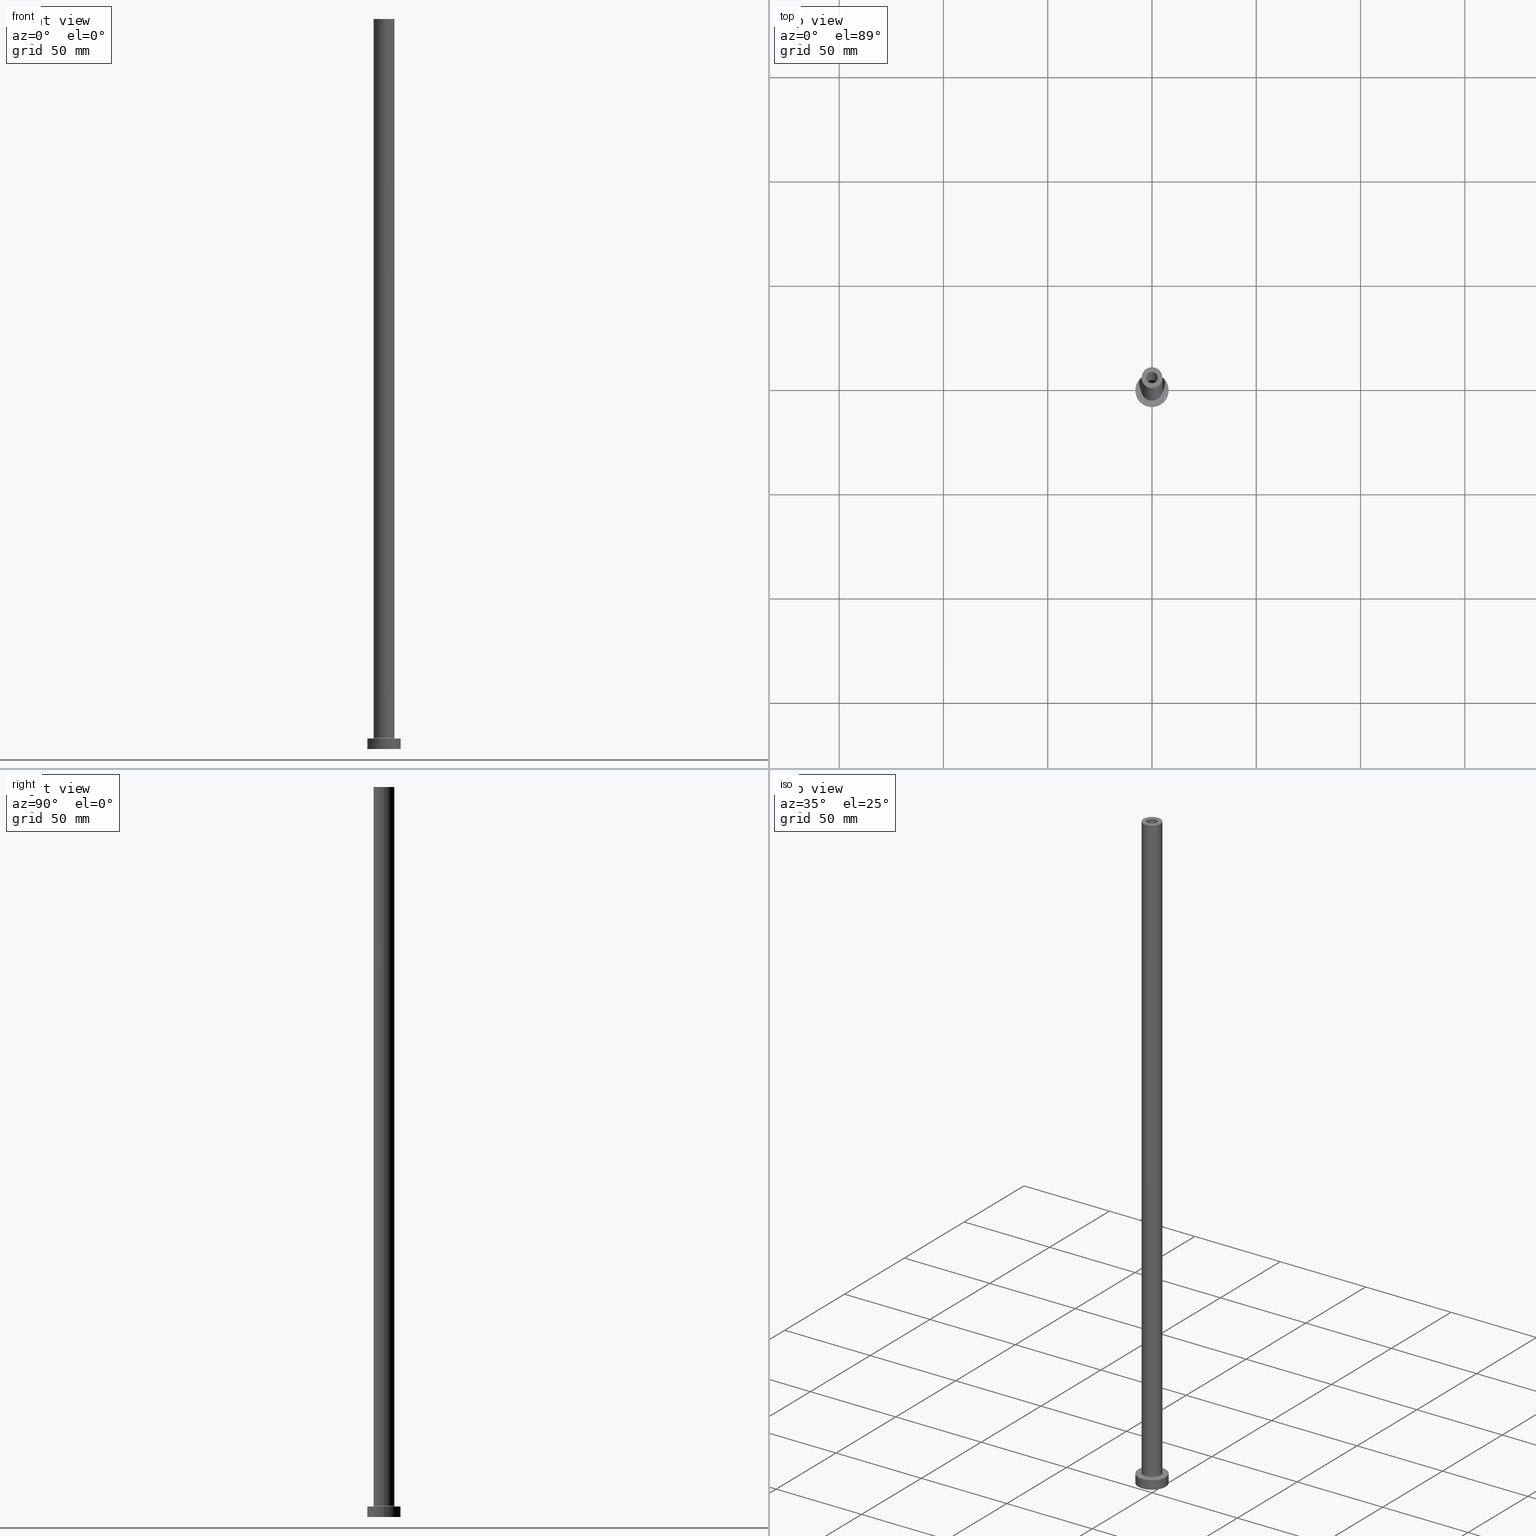
[diagram: canonical four-view strip — front | top / right | iso, engineering-drawing reading convention]
A machine part, canonical four-view strip (front | top / right | iso — engineering-drawing reading convention). The complete STEP part file that produces these views, byte-faithful:
ISO-10303-21;
HEADER;
FILE_DESCRIPTION (( 'STEP AP203' ),
    '1' );
FILE_NAME ('17ef.STEP',
    '2023-02-13T16:13:09',
    ( '' ),
    ( '' ),
    'SwSTEP 2.0',
    'SolidWorks 2019',
    '' );
FILE_SCHEMA (( 'CONFIG_CONTROL_DESIGN' ));
ENDSEC;

DATA;
#1 = CARTESIAN_POINT ( 'NONE',  ( -8.000000000000000000, 0.000000000000000000, 0.000000000000000000 ) ) ;
#2 = CIRCLE ( 'NONE', #451, 8.000000000000000000 ) ;
#3 = DIRECTION ( 'NONE',  ( 0.000000000000000000, 0.000000000000000000, 1.000000000000000000 ) ) ;
#4 = ORIENTED_EDGE ( 'NONE', *, *, #405, .F. ) ;
#5 = AXIS2_PLACEMENT_3D ( 'NONE', #430, #455, #117 ) ;
#6 = ORIENTED_EDGE ( 'NONE', *, *, #438, .F. ) ;
#7 = CYLINDRICAL_SURFACE ( 'NONE', #387, 5.000000000000000000 ) ;
#8 = EDGE_CURVE ( 'NONE', #322, #20, #286, .T. ) ;
#9 = ORIENTED_EDGE ( 'NONE', *, *, #438, .T. ) ;
#10 = CIRCLE ( 'NONE', #5, 5.000000000000000000 ) ;
#11 = CARTESIAN_POINT ( 'NONE',  ( 0.000000000000000000, 0.000000000000000000, 5.000000000000000000 ) ) ;
#12 = PERSON_AND_ORGANIZATION_ROLE ( 'design_owner' ) ;
#13 = PERSON_AND_ORGANIZATION_ROLE ( 'creator' ) ;
#14 = VECTOR ( 'NONE', #361, 1000.000000000000000 ) ;
#15 = ORGANIZATION ( 'NEUR�EN�', 'NEUR�EN�', '' ) ;
#16 = ORIENTED_EDGE ( 'NONE', *, *, #99, .T. ) ;
#17 =( NAMED_UNIT ( * ) SI_UNIT ( $, .STERADIAN. ) SOLID_ANGLE_UNIT ( ) );
#18 = FACE_OUTER_BOUND ( 'NONE', #76, .T. ) ;
#19 = EDGE_LOOP ( 'NONE', ( #365, #16, #187, #59 ) ) ;
#20 = VERTEX_POINT ( 'NONE', #237 ) ;
#21 = EDGE_CURVE ( 'NONE', #178, #138, #410, .T. ) ;
#22 = APPROVAL ( #374, 'NEUR�EN�' ) ;
#23 = ORIENTED_EDGE ( 'NONE', *, *, #278, .T. ) ;
#24 = AXIS2_PLACEMENT_3D ( 'NONE', #313, #90, #58 ) ;
#25 = DIRECTION ( 'NONE',  ( 0.000000000000000000, 0.000000000000000000, -1.000000000000000000 ) ) ;
#26 = VERTEX_POINT ( 'NONE', #331 ) ;
#27 = LINE ( 'NONE', #68, #368 ) ;
#28 = FACE_OUTER_BOUND ( 'NONE', #195, .T. ) ;
#29 =( LENGTH_UNIT ( ) NAMED_UNIT ( * ) SI_UNIT ( .MILLI., .METRE. ) );
#30 = EDGE_LOOP ( 'NONE', ( #154, #454, #135, #395 ) ) ;
#31 = DIRECTION ( 'NONE',  ( -0.000000000000000000, -0.000000000000000000, -1.000000000000000000 ) ) ;
#32 = VERTEX_POINT ( 'NONE', #145 ) ;
#33 = FACE_OUTER_BOUND ( 'NONE', #71, .T. ) ;
#34 = EDGE_CURVE ( 'NONE', #110, #450, #444, .T. ) ;
#35 = EDGE_CURVE ( 'NONE', #138, #178, #201, .T. ) ;
#36 = DIRECTION ( 'NONE',  ( -0.000000000000000000, -0.000000000000000000, -1.000000000000000000 ) ) ;
#37 = CARTESIAN_POINT ( 'NONE',  ( 0.000000000000000000, 0.000000000000000000, 5.500000000000005329 ) ) ;
#38 = CIRCLE ( 'NONE', #200, 2.899999999999999911 ) ;
#39 = CARTESIAN_POINT ( 'NONE',  ( 0.000000000000000000, 0.000000000000000000, 5.000000000000000000 ) ) ;
#40 = ORIENTED_EDGE ( 'NONE', *, *, #21, .T. ) ;
#41 = CIRCLE ( 'NONE', #311, 5.000000000000000000 ) ;
#42 = APPROVAL_DATE_TIME ( #332, #22 ) ;
#43 = AXIS2_PLACEMENT_3D ( 'NONE', #348, #161, #420 ) ;
#44 = DIRECTION ( 'NONE',  ( 1.000000000000000000, 0.000000000000000000, 0.000000000000000000 ) ) ;
#45 = DIRECTION ( 'NONE',  ( 1.000000000000000000, 0.000000000000000000, 0.000000000000000000 ) ) ;
#46 = APPROVAL_ROLE ( '' ) ;
#47 = CARTESIAN_POINT ( 'NONE',  ( 0.000000000000000000, 0.000000000000000000, 5.000000000000000000 ) ) ;
#48 = CALENDAR_DATE ( 2023, 13, 2 ) ;
#49 = ORIENTED_EDGE ( 'NONE', *, *, #199, .T. ) ;
#50 = DIRECTION ( 'NONE',  ( 0.000000000000000000, 0.000000000000000000, 1.000000000000000000 ) ) ;
#51 = DIRECTION ( 'NONE',  ( 1.000000000000000000, 0.000000000000000000, 0.000000000000000000 ) ) ;
#52 = APPROVAL_ROLE ( '' ) ;
#53 = CIRCLE ( 'NONE', #351, 2.750000000000000000 ) ;
#54 = EDGE_LOOP ( 'NONE', ( #346, #97, #339, #132 ) ) ;
#55 = AXIS2_PLACEMENT_3D ( 'NONE', #11, #186, #51 ) ;
#56 = ADVANCED_FACE ( 'NONE', ( #399, #244 ), #159, .T. ) ;
#57 = EDGE_CURVE ( 'NONE', #384, #118, #10, .T. ) ;
#58 = DIRECTION ( 'NONE',  ( -1.000000000000000000, 0.000000000000000000, 0.000000000000000000 ) ) ;
#59 = ORIENTED_EDGE ( 'NONE', *, *, #8, .F. ) ;
#60 = EDGE_LOOP ( 'NONE', ( #240, #317, #230, #344 ) ) ;
#61 = VECTOR ( 'NONE', #167, 1000.000000000000000 ) ;
#62 = CIRCLE ( 'NONE', #43, 8.000000000000000000 ) ;
#63 = ADVANCED_BREP_SHAPE_REPRESENTATION ( '17ef', ( #345, #287 ), #260 ) ;
#64 = DIRECTION ( 'NONE',  ( 1.000000000000000000, 0.000000000000000000, 0.000000000000000000 ) ) ;
#65 = FACE_BOUND ( 'NONE', #349, .T. ) ;
#66 = CARTESIAN_POINT ( 'NONE',  ( 0.000000000000000000, 0.000000000000000000, 313.2024386617639493 ) ) ;
#67 = DIRECTION ( 'NONE',  ( 1.000000000000000000, 0.000000000000000000, 0.000000000000000000 ) ) ;
#68 = CARTESIAN_POINT ( 'NONE',  ( -5.000000000000000000, 0.000000000000000000, 350.0000000000000000 ) ) ;
#69 = ORIENTED_EDGE ( 'NONE', *, *, #34, .T. ) ;
#70 = DIRECTION ( 'NONE',  ( 1.000000000000000000, 0.000000000000000000, 0.000000000000000000 ) ) ;
#71 = EDGE_LOOP ( 'NONE', ( #198, #449 ) ) ;
#72 = ADVANCED_FACE ( 'NONE', ( #363 ), #7, .T. ) ;
#73 = DIRECTION ( 'NONE',  ( 1.000000000000000000, 0.000000000000000000, 0.000000000000000000 ) ) ;
#74 = CARTESIAN_POINT ( 'NONE',  ( 5.000000000000000000, 6.123233995736766282E-16, 350.0000000000000000 ) ) ;
#75 = VERTEX_POINT ( 'NONE', #249 ) ;
#76 = EDGE_LOOP ( 'NONE', ( #296, #69, #379, #265 ) ) ;
#77 = DIRECTION ( 'NONE',  ( -0.000000000000000000, -0.000000000000000000, -1.000000000000000000 ) ) ;
#78 = DIRECTION ( 'NONE',  ( 0.000000000000000000, 0.000000000000000000, -1.000000000000000000 ) ) ;
#79 = DATE_AND_TIME ( #289, #437 ) ;
#80 = ORIENTED_EDGE ( 'NONE', *, *, #377, .T. ) ;
#81 = AXIS2_PLACEMENT_3D ( 'NONE', #196, #342, #155 ) ;
#82 = PLANE ( 'NONE',  #459 ) ;
#83 = DIRECTION ( 'NONE',  ( 0.000000000000000000, 0.000000000000000000, -1.000000000000000000 ) ) ;
#84 = CARTESIAN_POINT ( 'NONE',  ( 0.000000000000000000, 0.000000000000000000, 305.0000000000000000 ) ) ;
#85 = VERTEX_POINT ( 'NONE', #282 ) ;
#86 = EDGE_CURVE ( 'NONE', #85, #450, #321, .T. ) ;
#87 = CC_DESIGN_PERSON_AND_ORGANIZATION_ASSIGNMENT ( #146, #228, ( #409 ) ) ;
#88 = AXIS2_PLACEMENT_3D ( 'NONE', #229, #231, #153 ) ;
#89 = UNCERTAINTY_MEASURE_WITH_UNIT (LENGTH_MEASURE( 1.000000000000000082E-05 ), #29, 'distance_accuracy_value', 'NONE');
#90 = DIRECTION ( 'NONE',  ( -0.000000000000000000, -0.000000000000000000, -1.000000000000000000 ) ) ;
#91 = CALENDAR_DATE ( 2023, 13, 2 ) ;
#92 = EDGE_LOOP ( 'NONE', ( #148, #341 ) ) ;
#93 = DIRECTION ( 'NONE',  ( -0.000000000000000000, -0.000000000000000000, -1.000000000000000000 ) ) ;
#94 = VECTOR ( 'NONE', #324, 1000.000000000000000 ) ;
#95 = VECTOR ( 'NONE', #101, 1000.000000000000000 ) ;
#96 = DIRECTION ( 'NONE',  ( -1.000000000000000000, 0.000000000000000000, 0.000000000000000000 ) ) ;
#97 = ORIENTED_EDGE ( 'NONE', *, *, #255, .F. ) ;
#98 = EDGE_CURVE ( 'NONE', #322, #116, #241, .T. ) ;
#99 = EDGE_CURVE ( 'NONE', #116, #75, #359, .T. ) ;
#100 = AXIS2_PLACEMENT_3D ( 'NONE', #232, #370, #45 ) ;
#101 = DIRECTION ( 'NONE',  ( 0.000000000000000000, 0.000000000000000000, -1.000000000000000000 ) ) ;
#102 = DIRECTION ( 'NONE',  ( 0.000000000000000000, 0.000000000000000000, 1.000000000000000000 ) ) ;
#103 = DIRECTION ( 'NONE',  ( 1.000000000000000000, 0.000000000000000000, -0.000000000000000000 ) ) ;
#104 = DIRECTION ( 'NONE',  ( 1.224646799147353207E-16, 1.000000000000000000, -0.000000000000000000 ) ) ;
#105 = AXIS2_PLACEMENT_3D ( 'NONE', #433, #104, #323 ) ;
#106 = ADVANCED_FACE ( 'NONE', ( #247, #33 ), #170, .F. ) ;
#107 = EDGE_CURVE ( 'NONE', #248, #308, #149, .T. ) ;
#108 = CARTESIAN_POINT ( 'NONE',  ( -5.000000000000000000, 0.000000000000000000, 350.0000000000000000 ) ) ;
#109 = AXIS2_PLACEMENT_3D ( 'NONE', #252, #102, #73 ) ;
#110 = VERTEX_POINT ( 'NONE', #292 ) ;
#111 = DIRECTION ( 'NONE',  ( 0.000000000000000000, 0.000000000000000000, 1.000000000000000000 ) ) ;
#112 = APPLICATION_PROTOCOL_DEFINITION ( 'international standard', 'config_control_design', 1994, #411 ) ;
#113 = DIRECTION ( 'NONE',  ( 0.000000000000000000, 0.000000000000000000, -1.000000000000000000 ) ) ;
#114 = AXIS2_PLACEMENT_3D ( 'NONE', #250, #242, #103 ) ;
#115 = APPROVAL_PERSON_ORGANIZATION ( #150, #425, #52 ) ;
#116 = VERTEX_POINT ( 'NONE', #441 ) ;
#117 = DIRECTION ( 'NONE',  ( 1.000000000000000000, 0.000000000000000000, 0.000000000000000000 ) ) ;
#118 = VERTEX_POINT ( 'NONE', #108 ) ;
#119 = CARTESIAN_POINT ( 'NONE',  ( 0.000000000000000000, 0.000000000000000000, 350.0000000000000000 ) ) ;
#120 = AXIS2_PLACEMENT_3D ( 'NONE', #352, #130, #64 ) ;
#121 = LOCAL_TIME ( 17, 13, 9.000000000000000000, #403 ) ;
#122 = DIRECTION ( 'NONE',  ( 0.000000000000000000, -1.000000000000000000, 0.000000000000000000 ) ) ;
#123 = AXIS2_PLACEMENT_3D ( 'NONE', #213, #306, #318 ) ;
#124 = ADVANCED_FACE ( 'NONE', ( #222 ), #385, .F. ) ;
#125 = EDGE_CURVE ( 'NONE', #75, #20, #53, .T. ) ;
#126 = CYLINDRICAL_SURFACE ( 'NONE', #380, 2.899999999999999911 ) ;
#127 = DIRECTION ( 'NONE',  ( 1.000000000000000000, 0.000000000000000000, 0.000000000000000000 ) ) ;
#128 = LINE ( 'NONE', #316, #14 ) ;
#129 = CARTESIAN_POINT ( 'NONE',  ( 2.750000000000000000, 3.367778697655220519E-16, 350.0000000000000000 ) ) ;
#130 = DIRECTION ( 'NONE',  ( 0.000000000000000000, 0.000000000000000000, 1.000000000000000000 ) ) ;
#131 = FACE_OUTER_BOUND ( 'NONE', #253, .T. ) ;
#132 = ORIENTED_EDGE ( 'NONE', *, *, #390, .T. ) ;
#133 = EDGE_LOOP ( 'NONE', ( #238, #9, #401, #235 ) ) ;
#134 = ORIENTED_EDGE ( 'NONE', *, *, #268, .F. ) ;
#135 = ORIENTED_EDGE ( 'NONE', *, *, #8, .T. ) ;
#136 = DIRECTION ( 'NONE',  ( -1.000000000000000000, 0.000000000000000000, 0.000000000000000000 ) ) ;
#137 = COORDINATED_UNIVERSAL_TIME_OFFSET ( 1, 0, .AHEAD. ) ;
#138 = VERTEX_POINT ( 'NONE', #291 ) ;
#139 = ADVANCED_FACE ( 'NONE', ( #334 ), #177, .F. ) ;
#140 = MECHANICAL_CONTEXT ( 'NONE', #411, 'mechanical' ) ;
#141 = CC_DESIGN_DATE_AND_TIME_ASSIGNMENT ( #424, #378, ( #320 ) ) ;
#142 = COORDINATED_UNIVERSAL_TIME_OFFSET ( 1, 0, .AHEAD. ) ;
#143 = DATE_AND_TIME ( #147, #121 ) ;
#144 = DIRECTION ( 'NONE',  ( 0.000000000000000000, 0.000000000000000000, 1.000000000000000000 ) ) ;
#145 = CARTESIAN_POINT ( 'NONE',  ( 8.000000000000000000, 9.797174393178825657E-16, 0.000000000000000000 ) ) ;
#146 = PERSON_AND_ORGANIZATION ( #372, #15 ) ;
#147 = CALENDAR_DATE ( 2023, 13, 2 ) ;
#148 = ORIENTED_EDGE ( 'NONE', *, *, #255, .T. ) ;
#149 = CIRCLE ( 'NONE', #216, 5.500000000000000000 ) ;
#150 = PERSON_AND_ORGANIZATION ( #372, #15 ) ;
#151 = APPROVAL_ROLE ( '' ) ;
#152 = ORIENTED_EDGE ( 'NONE', *, *, #107, .T. ) ;
#153 = DIRECTION ( 'NONE',  ( -1.000000000000000000, 0.000000000000000000, 0.000000000000000000 ) ) ;
#154 = ORIENTED_EDGE ( 'NONE', *, *, #99, .F. ) ;
#155 = DIRECTION ( 'NONE',  ( -1.000000000000000000, 0.000000000000000000, 0.000000000000000000 ) ) ;
#156 = CIRCLE ( 'NONE', #105, 0.5000000000000004441 ) ;
#157 = CC_DESIGN_APPROVAL ( #425, ( #285 ) ) ;
#158 = VERTEX_POINT ( 'NONE', #288 ) ;
#159 = PLANE ( 'NONE',  #123 ) ;
#160 = CLOSED_SHELL ( 'NONE', ( #301, #371, #124, #72, #234, #439, #355, #106, #338, #56, #180, #452, #340, #139 ) ) ;
#161 = DIRECTION ( 'NONE',  ( 0.000000000000000000, 0.000000000000000000, 1.000000000000000000 ) ) ;
#162 = ORIENTED_EDGE ( 'NONE', *, *, #35, .T. ) ;
#163 = AXIS2_PLACEMENT_3D ( 'NONE', #119, #214, #283 ) ;
#164 = CYLINDRICAL_SURFACE ( 'NONE', #24, 8.000000000000000000 ) ;
#165 = LOCAL_TIME ( 17, 13, 9.000000000000000000, #142 ) ;
#166 = CC_DESIGN_PERSON_AND_ORGANIZATION_ASSIGNMENT ( #184, #13, ( #409 ) ) ;
#167 = DIRECTION ( 'NONE',  ( -0.000000000000000000, -0.000000000000000000, -1.000000000000000000 ) ) ;
#168 = CARTESIAN_POINT ( 'NONE',  ( -8.000000000000000000, 0.000000000000000000, 5.000000000000000000 ) ) ;
#169 = ORIENTED_EDGE ( 'NONE', *, *, #219, .F. ) ;
#170 = PLANE ( 'NONE',  #364 ) ;
#171 = FACE_BOUND ( 'NONE', #354, .T. ) ;
#172 = ORIENTED_EDGE ( 'NONE', *, *, #236, .T. ) ;
#173 = AXIS2_PLACEMENT_3D ( 'NONE', #37, #319, #362 ) ;
#174 = FACE_OUTER_BOUND ( 'NONE', #19, .T. ) ;
#175 = ORIENTED_EDGE ( 'NONE', *, *, #281, .T. ) ;
#176 = AXIS2_PLACEMENT_3D ( 'NONE', #396, #93, #70 ) ;
#177 = CYLINDRICAL_SURFACE ( 'NONE', #223, 2.750000000000000000 ) ;
#178 = VERTEX_POINT ( 'NONE', #440 ) ;
#179 = FACE_OUTER_BOUND ( 'NONE', #280, .T. ) ;
#180 = ADVANCED_FACE ( 'NONE', ( #350 ), #414, .F. ) ;
#181 = CIRCLE ( 'NONE', #163, 5.000000000000000000 ) ;
#182 = CC_DESIGN_PERSON_AND_ORGANIZATION_ASSIGNMENT ( #447, #404, ( #285 ) ) ;
#183 = COORDINATED_UNIVERSAL_TIME_OFFSET ( 1, 0, .AHEAD. ) ;
#184 = PERSON_AND_ORGANIZATION ( #372, #15 ) ;
#185 = DIRECTION ( 'NONE',  ( 1.000000000000000000, 0.000000000000000000, -0.000000000000000000 ) ) ;
#186 = DIRECTION ( 'NONE',  ( 0.000000000000000000, 0.000000000000000000, 1.000000000000000000 ) ) ;
#187 = ORIENTED_EDGE ( 'NONE', *, *, #417, .F. ) ;
#188 = DIRECTION ( 'NONE',  ( 1.000000000000000000, 0.000000000000000000, 0.000000000000000000 ) ) ;
#189 = AXIS2_PLACEMENT_3D ( 'NONE', #263, #50, #44 ) ;
#190 = DATE_AND_TIME ( #258, #415 ) ;
#191 = DIRECTION ( 'NONE',  ( 0.000000000000000000, 0.000000000000000000, 1.000000000000000000 ) ) ;
#192 = APPROVAL_STATUS ( 'not_yet_approved' ) ;
#193 = ORIENTED_EDGE ( 'NONE', *, *, #369, .F. ) ;
#194 = SECURITY_CLASSIFICATION_LEVEL ( 'unclassified' ) ;
#195 = EDGE_LOOP ( 'NONE', ( #40, #162 ) ) ;
#196 = CARTESIAN_POINT ( 'NONE',  ( 0.000000000000000000, 0.000000000000000000, 313.2024386617639493 ) ) ;
#197 = PRODUCT_DEFINITION_SHAPE ( 'NONE', 'NONE',  #285 ) ;
#198 = ORIENTED_EDGE ( 'NONE', *, *, #453, .F. ) ;
#199 = EDGE_CURVE ( 'NONE', #384, #212, #432, .T. ) ;
#200 = AXIS2_PLACEMENT_3D ( 'NONE', #204, #347, #215 ) ;
#201 = CIRCLE ( 'NONE', #109, 8.000000000000000000 ) ;
#202 = DIRECTION ( 'NONE',  ( 1.000000000000000000, 0.000000000000000000, 0.000000000000000000 ) ) ;
#203 = FACE_OUTER_BOUND ( 'NONE', #273, .T. ) ;
#204 = CARTESIAN_POINT ( 'NONE',  ( 0.000000000000000000, 0.000000000000000000, 305.0000000000000000 ) ) ;
#205 = CIRCLE ( 'NONE', #400, 2.899999999999999911 ) ;
#206 = CARTESIAN_POINT ( 'NONE',  ( 5.000000000000000000, 6.123233995736766282E-16, 350.0000000000000000 ) ) ;
#207 = ORIENTED_EDGE ( 'NONE', *, *, #125, .T. ) ;
#208 = CC_DESIGN_APPROVAL ( #330, ( #320 ) ) ;
#209 = CARTESIAN_POINT ( 'NONE',  ( 0.000000000000000000, 0.000000000000000000, 350.0000000000000000 ) ) ;
#210 = DIRECTION ( 'NONE',  ( 0.000000000000000000, 0.000000000000000000, -1.000000000000000000 ) ) ;
#211 = VECTOR ( 'NONE', #113, 1000.000000000000000 ) ;
#212 = VERTEX_POINT ( 'NONE', #314 ) ;
#213 = CARTESIAN_POINT ( 'NONE',  ( 0.000000000000000000, 0.000000000000000000, 350.0000000000000000 ) ) ;
#214 = DIRECTION ( 'NONE',  ( 0.000000000000000000, 0.000000000000000000, 1.000000000000000000 ) ) ;
#215 = DIRECTION ( 'NONE',  ( 1.000000000000000000, 0.000000000000000000, 0.000000000000000000 ) ) ;
#216 = AXIS2_PLACEMENT_3D ( 'NONE', #47, #77, #407 ) ;
#217 = CARTESIAN_POINT ( 'NONE',  ( 0.000000000000000000, 0.000000000000000000, 305.0000000000000000 ) ) ;
#218 = EDGE_CURVE ( 'NONE', #116, #322, #442, .T. ) ;
#219 = EDGE_CURVE ( 'NONE', #450, #85, #205, .T. ) ;
#220 = ORIENTED_EDGE ( 'NONE', *, *, #281, .F. ) ;
#221 = DIRECTION ( 'NONE',  ( 1.000000000000000000, 0.000000000000000000, 0.000000000000000000 ) ) ;
#222 = FACE_OUTER_BOUND ( 'NONE', #133, .T. ) ;
#223 = AXIS2_PLACEMENT_3D ( 'NONE', #325, #78, #136 ) ;
#224 = PERSON_AND_ORGANIZATION ( #372, #15 ) ;
#225 = SHAPE_DEFINITION_REPRESENTATION ( #197, #63 ) ;
#226 = CARTESIAN_POINT ( 'NONE',  ( 0.000000000000000000, 0.000000000000000000, 0.000000000000000000 ) ) ;
#227 = DIRECTION ( 'NONE',  ( 0.000000000000000000, 0.000000000000000000, 1.000000000000000000 ) ) ;
#228 = PERSON_AND_ORGANIZATION_ROLE ( 'design_supplier' ) ;
#229 = CARTESIAN_POINT ( 'NONE',  ( 0.000000000000000000, 0.000000000000000000, 5.000000000000000000 ) ) ;
#230 = ORIENTED_EDGE ( 'NONE', *, *, #357, .T. ) ;
#231 = DIRECTION ( 'NONE',  ( -0.000000000000000000, -0.000000000000000000, -1.000000000000000000 ) ) ;
#232 = CARTESIAN_POINT ( 'NONE',  ( 0.000000000000000000, 0.000000000000000000, 305.0000000000000000 ) ) ;
#233 = CYLINDRICAL_SURFACE ( 'NONE', #81, 2.899999999999999911 ) ;
#234 = ADVANCED_FACE ( 'NONE', ( #203 ), #164, .T. ) ;
#235 = ORIENTED_EDGE ( 'NONE', *, *, #236, .F. ) ;
#236 = EDGE_CURVE ( 'NONE', #212, #248, #435, .T. ) ;
#237 = CARTESIAN_POINT ( 'NONE',  ( -2.750000000000000000, 0.000000000000000000, 305.0000000000000000 ) ) ;
#238 = ORIENTED_EDGE ( 'NONE', *, *, #390, .F. ) ;
#239 = AXIS2_PLACEMENT_3D ( 'NONE', #389, #122, #210 ) ;
#240 = ORIENTED_EDGE ( 'NONE', *, *, #34, .F. ) ;
#241 = CIRCLE ( 'NONE', #297, 2.750000000000000000 ) ;
#242 = DIRECTION ( 'NONE',  ( 0.000000000000000000, 0.000000000000000000, 1.000000000000000000 ) ) ;
#243 = EDGE_LOOP ( 'NONE', ( #456, #169 ) ) ;
#244 = FACE_OUTER_BOUND ( 'NONE', #92, .T. ) ;
#245 = DIRECTION ( 'NONE',  ( 0.000000000000000000, 0.000000000000000000, -1.000000000000000000 ) ) ;
#246 = CIRCLE ( 'NONE', #120, 5.000000000000000000 ) ;
#247 = FACE_BOUND ( 'NONE', #243, .T. ) ;
#248 = VERTEX_POINT ( 'NONE', #427 ) ;
#249 = CARTESIAN_POINT ( 'NONE',  ( 2.750000000000000000, 3.367778697655220519E-16, 305.0000000000000000 ) ) ;
#250 = CARTESIAN_POINT ( 'NONE',  ( 0.000000000000000000, 0.000000000000000000, 305.0000000000000000 ) ) ;
#251 = CARTESIAN_POINT ( 'NONE',  ( 0.000000000000000000, 0.000000000000000000, 0.000000000000000000 ) ) ;
#252 = CARTESIAN_POINT ( 'NONE',  ( 0.000000000000000000, 0.000000000000000000, 5.000000000000000000 ) ) ;
#253 = EDGE_LOOP ( 'NONE', ( #193, #326 ) ) ;
#254 = AXIS2_PLACEMENT_3D ( 'NONE', #84, #191, #337 ) ;
#255 = EDGE_CURVE ( 'NONE', #118, #384, #181, .T. ) ;
#256 = CC_DESIGN_DATE_AND_TIME_ASSIGNMENT ( #79, #367, ( #285 ) ) ;
#257 = APPLICATION_CONTEXT ( 'configuration controlled 3d designs of mechanical parts and assemblies' ) ;
#258 = CALENDAR_DATE ( 2023, 13, 2 ) ;
#259 = DIRECTION ( 'NONE',  ( 1.000000000000000000, 0.000000000000000000, -0.000000000000000000 ) ) ;
#260 =( GEOMETRIC_REPRESENTATION_CONTEXT ( 3 ) GLOBAL_UNCERTAINTY_ASSIGNED_CONTEXT ( ( #89 ) ) GLOBAL_UNIT_ASSIGNED_CONTEXT ( ( #29, #329, #17 ) ) REPRESENTATION_CONTEXT ( 'NONE', 'WORKASPACE' ) );
#261 = APPLICATION_PROTOCOL_DEFINITION ( 'international standard', 'config_control_design', 1994, #257 ) ;
#262 = APPROVAL_DATE_TIME ( #143, #330 ) ;
#263 = CARTESIAN_POINT ( 'NONE',  ( 0.000000000000000000, 0.000000000000000000, 5.500000000000005329 ) ) ;
#264 = CARTESIAN_POINT ( 'NONE',  ( 2.899999999999999911, 3.551475717527323832E-16, 313.2024386617639493 ) ) ;
#265 = ORIENTED_EDGE ( 'NONE', *, *, #357, .F. ) ;
#266 = PERSON_AND_ORGANIZATION ( #372, #15 ) ;
#267 = EDGE_CURVE ( 'NONE', #110, #158, #38, .T. ) ;
#268 = EDGE_CURVE ( 'NONE', #178, #305, #358, .T. ) ;
#269 = ORIENTED_EDGE ( 'NONE', *, *, #57, .F. ) ;
#270 = ORIENTED_EDGE ( 'NONE', *, *, #218, .F. ) ;
#271 = DIRECTION ( 'NONE',  ( -0.000000000000000000, -0.000000000000000000, -1.000000000000000000 ) ) ;
#272 = DIRECTION ( 'NONE',  ( -1.000000000000000000, 0.000000000000000000, 0.000000000000000000 ) ) ;
#273 = EDGE_LOOP ( 'NONE', ( #421, #23, #80, #134 ) ) ;
#274 = AXIS2_PLACEMENT_3D ( 'NONE', #457, #245, #393 ) ;
#275 = CYLINDRICAL_SURFACE ( 'NONE', #327, 5.000000000000000000 ) ;
#276 = CARTESIAN_POINT ( 'NONE',  ( -5.500000000000000000, 6.735557395310442023E-16, 5.000000000000002665 ) ) ;
#277 = CARTESIAN_POINT ( 'NONE',  ( -2.750000000000000000, 0.000000000000000000, 350.0000000000000000 ) ) ;
#278 = EDGE_CURVE ( 'NONE', #138, #32, #128, .T. ) ;
#279 = CIRCLE ( 'NONE', #293, 5.500000000000000000 ) ;
#280 = EDGE_LOOP ( 'NONE', ( #333, #284, #383, #446 ) ) ;
#281 = EDGE_CURVE ( 'NONE', #308, #248, #279, .T. ) ;
#282 = CARTESIAN_POINT ( 'NONE',  ( -2.899999999999999911, 0.000000000000000000, 0.000000000000000000 ) ) ;
#283 = DIRECTION ( 'NONE',  ( 1.000000000000000000, 0.000000000000000000, 0.000000000000000000 ) ) ;
#284 = ORIENTED_EDGE ( 'NONE', *, *, #21, .F. ) ;
#285 = PRODUCT_DEFINITION ( 'NEZN�M�', '', #409, #299 ) ;
#286 = LINE ( 'NONE', #436, #211 ) ;
#287 = AXIS2_PLACEMENT_3D ( 'NONE', #445, #227, #221 ) ;
#288 = CARTESIAN_POINT ( 'NONE',  ( -2.899999999999999911, 0.000000000000000000, 305.0000000000000000 ) ) ;
#289 = CALENDAR_DATE ( 2023, 13, 2 ) ;
#290 = VECTOR ( 'NONE', #83, 1000.000000000000000 ) ;
#291 = CARTESIAN_POINT ( 'NONE',  ( 8.000000000000000000, 9.797174393178825657E-16, 5.000000000000000000 ) ) ;
#292 = CARTESIAN_POINT ( 'NONE',  ( 2.899999999999999911, 3.551475717527323832E-16, 305.0000000000000000 ) ) ;
#293 = AXIS2_PLACEMENT_3D ( 'NONE', #39, #397, #202 ) ;
#294 = LINE ( 'NONE', #443, #94 ) ;
#295 = APPROVAL_STATUS ( 'not_yet_approved' ) ;
#296 = ORIENTED_EDGE ( 'NONE', *, *, #369, .T. ) ;
#297 = AXIS2_PLACEMENT_3D ( 'NONE', #209, #356, #127 ) ;
#298 = APPROVAL_DATE_TIME ( #190, #425 ) ;
#299 = DESIGN_CONTEXT ( 'detailed design', #257, 'design' ) ;
#300 = EDGE_LOOP ( 'NONE', ( #366, #270 ) ) ;
#301 = ADVANCED_FACE ( 'NONE', ( #174 ), #353, .F. ) ;
#302 = ORIENTED_EDGE ( 'NONE', *, *, #391, .F. ) ;
#303 = CIRCLE ( 'NONE', #100, 2.750000000000000000 ) ;
#304 = APPROVAL_PERSON_ORGANIZATION ( #224, #22, #46 ) ;
#305 = VERTEX_POINT ( 'NONE', #1 ) ;
#306 = DIRECTION ( 'NONE',  ( 0.000000000000000000, 0.000000000000000000, 1.000000000000000000 ) ) ;
#307 = CARTESIAN_POINT ( 'NONE',  ( 0.000000000000000000, 0.000000000000000000, 0.000000000000000000 ) ) ;
#308 = VERTEX_POINT ( 'NONE', #276 ) ;
#309 = DIRECTION ( 'NONE',  ( 0.000000000000000000, 0.000000000000000000, 1.000000000000000000 ) ) ;
#310 = ORIENTED_EDGE ( 'NONE', *, *, #391, .T. ) ;
#311 = AXIS2_PLACEMENT_3D ( 'NONE', #392, #309, #386 ) ;
#312 = DIRECTION ( 'NONE',  ( -0.000000000000000000, -0.000000000000000000, -1.000000000000000000 ) ) ;
#313 = CARTESIAN_POINT ( 'NONE',  ( 0.000000000000000000, 0.000000000000000000, 5.000000000000000000 ) ) ;
#314 = CARTESIAN_POINT ( 'NONE',  ( 5.000000000000000000, 6.123233995736766282E-16, 5.500000000000005329 ) ) ;
#315 = CC_DESIGN_PERSON_AND_ORGANIZATION_ASSIGNMENT ( #376, #12, ( #381 ) ) ;
#316 = CARTESIAN_POINT ( 'NONE',  ( 8.000000000000000000, 9.797174393178825657E-16, 5.000000000000000000 ) ) ;
#317 = ORIENTED_EDGE ( 'NONE', *, *, #267, .T. ) ;
#318 = DIRECTION ( 'NONE',  ( 1.000000000000000000, 0.000000000000000000, -0.000000000000000000 ) ) ;
#319 = DIRECTION ( 'NONE',  ( 0.000000000000000000, 0.000000000000000000, 1.000000000000000000 ) ) ;
#320 = SECURITY_CLASSIFICATION ( '', '', #194 ) ;
#321 = CIRCLE ( 'NONE', #176, 2.899999999999999911 ) ;
#322 = VERTEX_POINT ( 'NONE', #277 ) ;
#323 = DIRECTION ( 'NONE',  ( -1.000000000000000000, 1.224646799147351482E-16, 0.000000000000000000 ) ) ;
#324 = DIRECTION ( 'NONE',  ( 0.000000000000000000, 0.000000000000000000, -1.000000000000000000 ) ) ;
#325 = CARTESIAN_POINT ( 'NONE',  ( 0.000000000000000000, 0.000000000000000000, 350.0000000000000000 ) ) ;
#326 = ORIENTED_EDGE ( 'NONE', *, *, #267, .F. ) ;
#327 = AXIS2_PLACEMENT_3D ( 'NONE', #360, #36, #96 ) ;
#328 = CYLINDRICAL_SURFACE ( 'NONE', #88, 8.000000000000000000 ) ;
#329 =( NAMED_UNIT ( * ) PLANE_ANGLE_UNIT ( ) SI_UNIT ( $, .RADIAN. ) );
#330 = APPROVAL ( #192, 'NEUR�EN�' ) ;
#331 = CARTESIAN_POINT ( 'NONE',  ( -5.000000000000000000, 0.000000000000000000, 5.500000000000005329 ) ) ;
#332 = DATE_AND_TIME ( #48, #165 ) ;
#333 = ORIENTED_EDGE ( 'NONE', *, *, #278, .F. ) ;
#334 = FACE_OUTER_BOUND ( 'NONE', #30, .T. ) ;
#335 = CIRCLE ( 'NONE', #254, 2.899999999999999911 ) ;
#336 = LOCAL_TIME ( 17, 13, 9.000000000000000000, #448 ) ;
#337 = DIRECTION ( 'NONE',  ( 1.000000000000000000, 0.000000000000000000, 0.000000000000000000 ) ) ;
#338 = ADVANCED_FACE ( 'NONE', ( #394 ), #275, .T. ) ;
#339 = ORIENTED_EDGE ( 'NONE', *, *, #405, .T. ) ;
#340 = ADVANCED_FACE ( 'NONE', ( #171, #131 ), #431, .F. ) ;
#341 = ORIENTED_EDGE ( 'NONE', *, *, #57, .T. ) ;
#342 = DIRECTION ( 'NONE',  ( 0.000000000000000000, 0.000000000000000000, -1.000000000000000000 ) ) ;
#343 = PERSON_AND_ORGANIZATION_ROLE ( 'classification_officer' ) ;
#344 = ORIENTED_EDGE ( 'NONE', *, *, #86, .T. ) ;
#345 = MANIFOLD_SOLID_BREP ( 'Odebrat vysunut�m4', #160 ) ;
#346 = ORIENTED_EDGE ( 'NONE', *, *, #199, .F. ) ;
#347 = DIRECTION ( 'NONE',  ( 0.000000000000000000, 0.000000000000000000, 1.000000000000000000 ) ) ;
#348 = CARTESIAN_POINT ( 'NONE',  ( 0.000000000000000000, 0.000000000000000000, 0.000000000000000000 ) ) ;
#349 = EDGE_LOOP ( 'NONE', ( #152, #175 ) ) ;
#350 = FACE_OUTER_BOUND ( 'NONE', #416, .T. ) ;
#351 = AXIS2_PLACEMENT_3D ( 'NONE', #217, #412, #188 ) ;
#352 = CARTESIAN_POINT ( 'NONE',  ( 0.000000000000000000, 0.000000000000000000, 5.500000000000005329 ) ) ;
#353 = CYLINDRICAL_SURFACE ( 'NONE', #274, 2.750000000000000000 ) ;
#354 = EDGE_LOOP ( 'NONE', ( #402, #207 ) ) ;
#355 = ADVANCED_FACE ( 'NONE', ( #65, #28 ), #82, .T. ) ;
#356 = DIRECTION ( 'NONE',  ( 0.000000000000000000, 0.000000000000000000, 1.000000000000000000 ) ) ;
#357 = EDGE_CURVE ( 'NONE', #158, #85, #294, .T. ) ;
#358 = LINE ( 'NONE', #168, #422 ) ;
#359 = LINE ( 'NONE', #129, #95 ) ;
#360 = CARTESIAN_POINT ( 'NONE',  ( 0.000000000000000000, 0.000000000000000000, 350.0000000000000000 ) ) ;
#361 = DIRECTION ( 'NONE',  ( -0.000000000000000000, -0.000000000000000000, -1.000000000000000000 ) ) ;
#362 = DIRECTION ( 'NONE',  ( 1.000000000000000000, 0.000000000000000000, 0.000000000000000000 ) ) ;
#363 = FACE_OUTER_BOUND ( 'NONE', #413, .T. ) ;
#364 = AXIS2_PLACEMENT_3D ( 'NONE', #226, #111, #259 ) ;
#365 = ORIENTED_EDGE ( 'NONE', *, *, #98, .T. ) ;
#366 = ORIENTED_EDGE ( 'NONE', *, *, #98, .F. ) ;
#367 = DATE_TIME_ROLE ( 'creation_date' ) ;
#368 = VECTOR ( 'NONE', #31, 1000.000000000000000 ) ;
#369 = EDGE_CURVE ( 'NONE', #158, #110, #335, .T. ) ;
#370 = DIRECTION ( 'NONE',  ( 0.000000000000000000, 0.000000000000000000, 1.000000000000000000 ) ) ;
#371 = ADVANCED_FACE ( 'NONE', ( #18 ), #233, .F. ) ;
#372 = PERSON ( 'NEUR�EN�', 'NEUR�EN�', 'NEUR�EN�', ('NEUR�EN�'), ('NEUR�EN�'), ('NEUR�EN�') ) ;
#373 = CARTESIAN_POINT ( 'NONE',  ( 0.000000000000000000, 0.000000000000000000, 5.000000000000000000 ) ) ;
#374 = APPROVAL_STATUS ( 'not_yet_approved' ) ;
#375 = DIRECTION ( 'NONE',  ( 1.000000000000000000, 0.000000000000000000, 0.000000000000000000 ) ) ;
#376 = PERSON_AND_ORGANIZATION ( #372, #15 ) ;
#377 = EDGE_CURVE ( 'NONE', #32, #305, #2, .T. ) ;
#378 = DATE_TIME_ROLE ( 'classification_date' ) ;
#379 = ORIENTED_EDGE ( 'NONE', *, *, #219, .T. ) ;
#380 = AXIS2_PLACEMENT_3D ( 'NONE', #66, #25, #272 ) ;
#381 = PRODUCT ( '17ef', '17ef', '', ( #140 ) ) ;
#382 = PERSON_AND_ORGANIZATION ( #372, #15 ) ;
#383 = ORIENTED_EDGE ( 'NONE', *, *, #268, .T. ) ;
#384 = VERTEX_POINT ( 'NONE', #74 ) ;
#385 = TOROIDAL_SURFACE ( 'NONE', #189, 5.500000000000000000, 0.5000000000000000000 ) ;
#386 = DIRECTION ( 'NONE',  ( 1.000000000000000000, 0.000000000000000000, 0.000000000000000000 ) ) ;
#387 = AXIS2_PLACEMENT_3D ( 'NONE', #434, #271, #418 ) ;
#388 = CARTESIAN_POINT ( 'NONE',  ( 2.899999999999999911, 3.551475717527323832E-16, 0.000000000000000000 ) ) ;
#389 = CARTESIAN_POINT ( 'NONE',  ( 5.500000000000000000, 0.000000000000000000, 5.500000000000005329 ) ) ;
#390 = EDGE_CURVE ( 'NONE', #26, #212, #246, .T. ) ;
#391 = EDGE_CURVE ( 'NONE', #212, #26, #41, .T. ) ;
#392 = CARTESIAN_POINT ( 'NONE',  ( 0.000000000000000000, 0.000000000000000000, 5.500000000000005329 ) ) ;
#393 = DIRECTION ( 'NONE',  ( -1.000000000000000000, 0.000000000000000000, 0.000000000000000000 ) ) ;
#394 = FACE_OUTER_BOUND ( 'NONE', #54, .T. ) ;
#395 = ORIENTED_EDGE ( 'NONE', *, *, #125, .F. ) ;
#396 = CARTESIAN_POINT ( 'NONE',  ( 0.000000000000000000, 0.000000000000000000, 0.000000000000000000 ) ) ;
#397 = DIRECTION ( 'NONE',  ( -0.000000000000000000, -0.000000000000000000, -1.000000000000000000 ) ) ;
#398 = DIRECTION ( 'NONE',  ( -0.000000000000000000, -0.000000000000000000, -1.000000000000000000 ) ) ;
#399 = FACE_BOUND ( 'NONE', #300, .T. ) ;
#400 = AXIS2_PLACEMENT_3D ( 'NONE', #251, #398, #67 ) ;
#401 = ORIENTED_EDGE ( 'NONE', *, *, #107, .F. ) ;
#402 = ORIENTED_EDGE ( 'NONE', *, *, #417, .T. ) ;
#403 = COORDINATED_UNIVERSAL_TIME_OFFSET ( 1, 0, .AHEAD. ) ;
#404 = PERSON_AND_ORGANIZATION_ROLE ( 'creator' ) ;
#405 = EDGE_CURVE ( 'NONE', #118, #26, #27, .T. ) ;
#406 = CC_DESIGN_PERSON_AND_ORGANIZATION_ASSIGNMENT ( #382, #343, ( #320 ) ) ;
#407 = DIRECTION ( 'NONE',  ( 1.000000000000000000, 0.000000000000000000, 0.000000000000000000 ) ) ;
#408 = AXIS2_PLACEMENT_3D ( 'NONE', #426, #3, #428 ) ;
#409 = PRODUCT_DEFINITION_FORMATION_WITH_SPECIFIED_SOURCE ( 'LIBOVOLN�', '', #381, .NOT_KNOWN. ) ;
#410 = CIRCLE ( 'NONE', #55, 8.000000000000000000 ) ;
#411 = APPLICATION_CONTEXT ( 'configuration controlled 3d designs of mechanical parts and assemblies' ) ;
#412 = DIRECTION ( 'NONE',  ( 0.000000000000000000, 0.000000000000000000, 1.000000000000000000 ) ) ;
#413 = EDGE_LOOP ( 'NONE', ( #269, #49, #310, #4 ) ) ;
#414 = TOROIDAL_SURFACE ( 'NONE', #173, 5.500000000000000000, 0.5000000000000000000 ) ;
#415 = LOCAL_TIME ( 17, 13, 9.000000000000000000, #183 ) ;
#416 = EDGE_LOOP ( 'NONE', ( #6, #302, #172, #220 ) ) ;
#417 = EDGE_CURVE ( 'NONE', #20, #75, #303, .T. ) ;
#418 = DIRECTION ( 'NONE',  ( -1.000000000000000000, 0.000000000000000000, 0.000000000000000000 ) ) ;
#419 = DIRECTION ( 'NONE',  ( 0.000000000000000000, 0.000000000000000000, 1.000000000000000000 ) ) ;
#420 = DIRECTION ( 'NONE',  ( 1.000000000000000000, 0.000000000000000000, 0.000000000000000000 ) ) ;
#421 = ORIENTED_EDGE ( 'NONE', *, *, #35, .F. ) ;
#422 = VECTOR ( 'NONE', #312, 1000.000000000000000 ) ;
#423 = CC_DESIGN_APPROVAL ( #22, ( #409 ) ) ;
#424 = DATE_AND_TIME ( #91, #336 ) ;
#425 = APPROVAL ( #295, 'NEUR�EN�' ) ;
#426 = CARTESIAN_POINT ( 'NONE',  ( 0.000000000000000000, 0.000000000000000000, 350.0000000000000000 ) ) ;
#427 = CARTESIAN_POINT ( 'NONE',  ( 5.500000000000000000, 0.000000000000000000, 5.000000000000002665 ) ) ;
#428 = DIRECTION ( 'NONE',  ( 1.000000000000000000, 0.000000000000000000, 0.000000000000000000 ) ) ;
#429 = APPROVAL_PERSON_ORGANIZATION ( #266, #330, #151 ) ;
#430 = CARTESIAN_POINT ( 'NONE',  ( 0.000000000000000000, 0.000000000000000000, 350.0000000000000000 ) ) ;
#431 = PLANE ( 'NONE',  #114 ) ;
#432 = LINE ( 'NONE', #206, #61 ) ;
#433 = CARTESIAN_POINT ( 'NONE',  ( -5.500000000000000000, 6.735557395310442023E-16, 5.500000000000005329 ) ) ;
#434 = CARTESIAN_POINT ( 'NONE',  ( 0.000000000000000000, 0.000000000000000000, 350.0000000000000000 ) ) ;
#435 = CIRCLE ( 'NONE', #239, 0.5000000000000004441 ) ;
#436 = CARTESIAN_POINT ( 'NONE',  ( -2.750000000000000000, 0.000000000000000000, 350.0000000000000000 ) ) ;
#437 = LOCAL_TIME ( 17, 13, 9.000000000000000000, #137 ) ;
#438 = EDGE_CURVE ( 'NONE', #26, #308, #156, .T. ) ;
#439 = ADVANCED_FACE ( 'NONE', ( #179 ), #328, .T. ) ;
#440 = CARTESIAN_POINT ( 'NONE',  ( -8.000000000000000000, 0.000000000000000000, 5.000000000000000000 ) ) ;
#441 = CARTESIAN_POINT ( 'NONE',  ( 2.750000000000000000, 3.367778697655220519E-16, 350.0000000000000000 ) ) ;
#442 = CIRCLE ( 'NONE', #408, 2.750000000000000000 ) ;
#443 = CARTESIAN_POINT ( 'NONE',  ( -2.899999999999999911, 0.000000000000000000, 313.2024386617639493 ) ) ;
#444 = LINE ( 'NONE', #264, #290 ) ;
#445 = CARTESIAN_POINT ( 'NONE',  ( 0.000000000000000000, 0.000000000000000000, 0.000000000000000000 ) ) ;
#446 = ORIENTED_EDGE ( 'NONE', *, *, #453, .T. ) ;
#447 = PERSON_AND_ORGANIZATION ( #372, #15 ) ;
#448 = COORDINATED_UNIVERSAL_TIME_OFFSET ( 1, 0, .AHEAD. ) ;
#449 = ORIENTED_EDGE ( 'NONE', *, *, #377, .F. ) ;
#450 = VERTEX_POINT ( 'NONE', #388 ) ;
#451 = AXIS2_PLACEMENT_3D ( 'NONE', #307, #419, #375 ) ;
#452 = ADVANCED_FACE ( 'NONE', ( #461 ), #126, .F. ) ;
#453 = EDGE_CURVE ( 'NONE', #305, #32, #62, .T. ) ;
#454 = ORIENTED_EDGE ( 'NONE', *, *, #218, .T. ) ;
#455 = DIRECTION ( 'NONE',  ( 0.000000000000000000, 0.000000000000000000, 1.000000000000000000 ) ) ;
#456 = ORIENTED_EDGE ( 'NONE', *, *, #86, .F. ) ;
#457 = CARTESIAN_POINT ( 'NONE',  ( 0.000000000000000000, 0.000000000000000000, 350.0000000000000000 ) ) ;
#458 = PRODUCT_RELATED_PRODUCT_CATEGORY ( 'detail', '', ( #381 ) ) ;
#459 = AXIS2_PLACEMENT_3D ( 'NONE', #373, #144, #185 ) ;
#460 = CC_DESIGN_SECURITY_CLASSIFICATION ( #320, ( #409 ) ) ;
#461 = FACE_OUTER_BOUND ( 'NONE', #60, .T. ) ;
ENDSEC;
END-ISO-10303-21;
